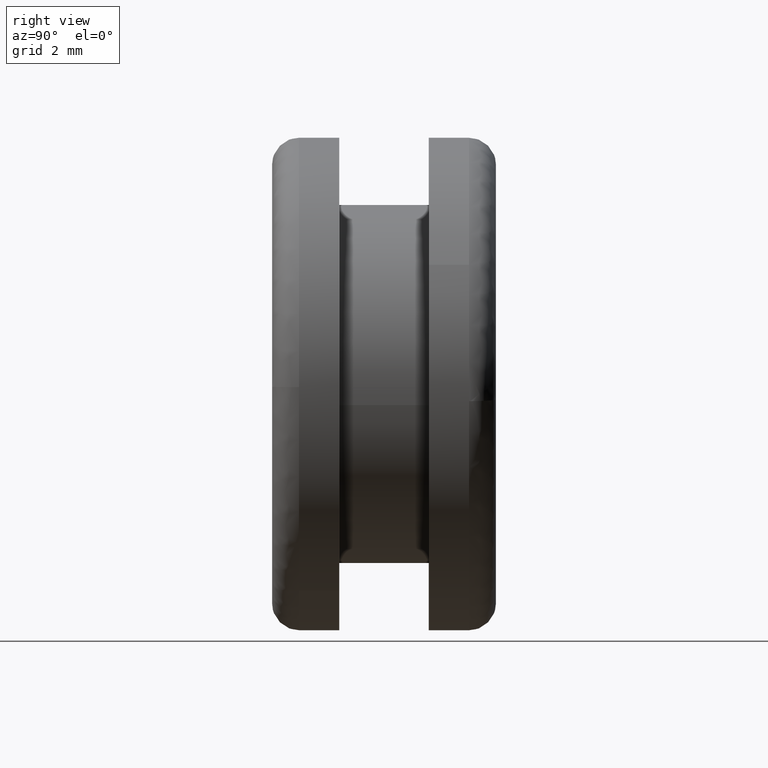
[diagram: clean part render]
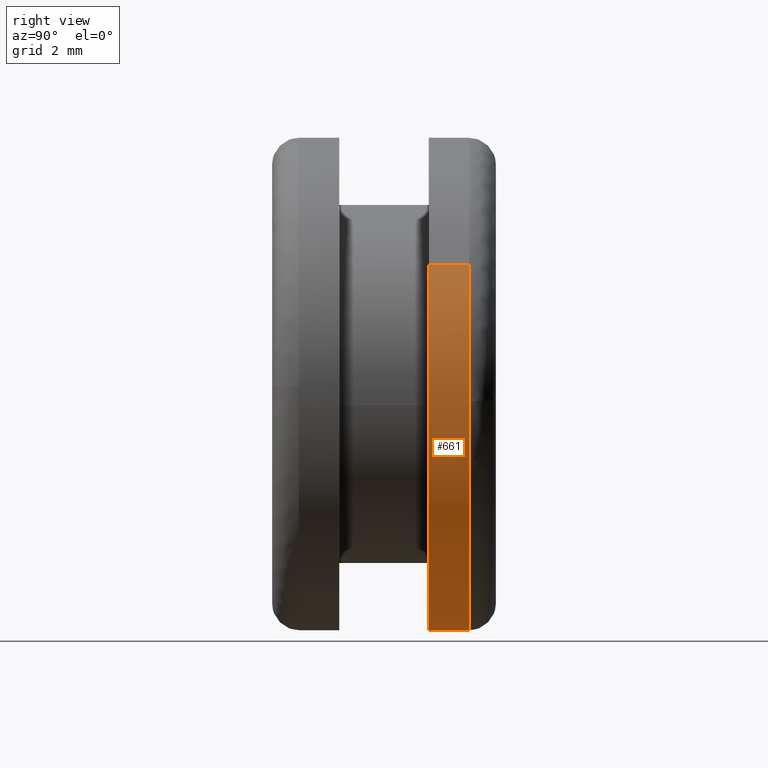
[diagram: same view with one face highlighted and labeled with its STEP entity id]
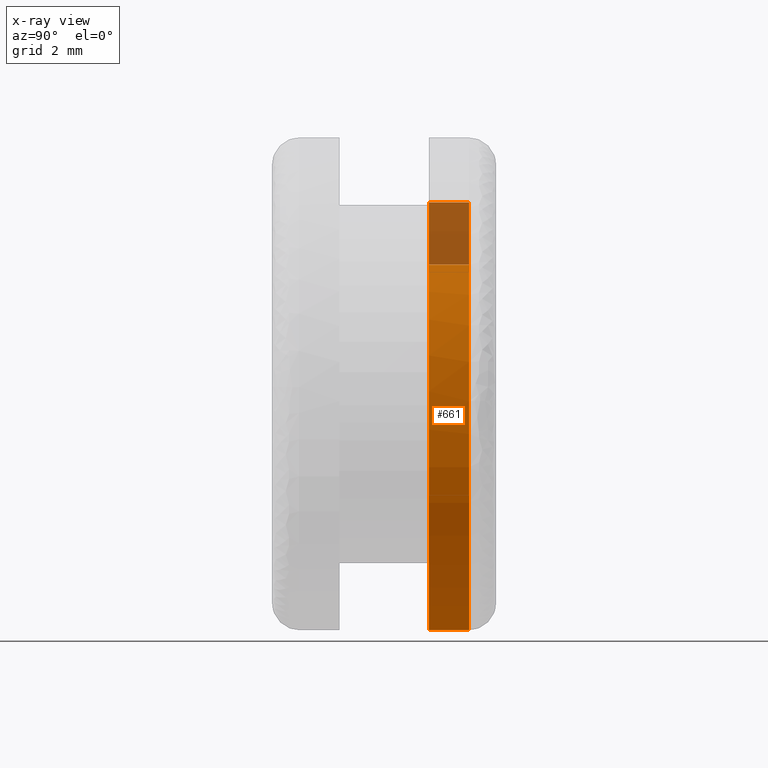
[diagram: x-ray of the same camera — body ghosted, the highlighted face saturated]
A machine part, right view. The second image highlights one B-rep face of the part: STEP entity #661.
The next image is the same camera in x-ray: the body ghosted, the highlighted face saturated — about 15% of this face is hidden behind the body in this view.
In plain terms, the highlighted face is a freeform B-spline surface patch.
Its self-contained STEP definition (entity closure, byte-faithful):
#464=CARTESIAN_POINT('',(4.812205843439302,4.400000000000018,2.663207637486718));
#465=VERTEX_POINT('',#464);
#481=CARTESIAN_POINT('',(-3.715745918085256,4.400000000007310,4.055025557530997));
#482=VERTEX_POINT('',#481);
#496=CARTESIAN_POINT('',(-3.715745924040497,3.500000000000000,4.055025552074405));
#497=VERTEX_POINT('',#496);
#498=CARTESIAN_POINT('',(-3.715745918085256,4.400000000007310,4.055025557530997));
#499=CARTESIAN_POINT('',(-3.715745924040497,3.500000000000000,4.055025552074405));
#500=QUASI_UNIFORM_CURVE('',1,(#498,#499),.UNSPECIFIED.,.F.,.U.);
#501=EDGE_CURVE('',#482,#497,#500,.T.);
#518=CARTESIAN_POINT('',(4.812205804631674,3.500000000000000,2.663207707609066));
#519=VERTEX_POINT('',#518);
#533=CARTESIAN_POINT('',(4.812205843439302,4.400000000000018,2.663207637486718));
#534=CARTESIAN_POINT('',(4.812205804631674,3.500000000000000,2.663207707609066));
#535=QUASI_UNIFORM_CURVE('',1,(#533,#534),.UNSPECIFIED.,.F.,.U.);
#536=EDGE_CURVE('',#465,#519,#535,.T.);
#541=CARTESIAN_POINT('',(-3.715746141886131,4.422500000028186,4.055025352455680));
#542=CARTESIAN_POINT('',(-7.770771494341811,4.422500000028186,0.339279210569550));
#543=CARTESIAN_POINT('',(-4.055025352455680,4.422500000028186,-3.715746141886131));
#544=CARTESIAN_POINT('',(-0.339279210569550,4.422500000028186,-7.770771494341811));
#545=CARTESIAN_POINT('',(3.715746141886131,4.422500000028186,-4.055025352455680));
#546=CARTESIAN_POINT('',(6.910254076114374,4.422500000028187,-1.127798146676340));
#547=CARTESIAN_POINT('',(4.812205350937217,4.422500000028186,2.663208527399086));
#548=CARTESIAN_POINT('',(-3.715746141886131,3.476937499999295,4.055025352455680));
#549=CARTESIAN_POINT('',(-7.770771494341811,3.476937499999295,0.339279210569550));
#550=CARTESIAN_POINT('',(-4.055025352455680,3.476937499999295,-3.715746141886131));
#551=CARTESIAN_POINT('',(-0.339279210569550,3.476937499999295,-7.770771494341811));
#552=CARTESIAN_POINT('',(3.715746141886131,3.476937499999295,-4.055025352455680));
#553=CARTESIAN_POINT('',(6.910254076114374,3.476937499999294,-1.127798146676340));
#554=CARTESIAN_POINT('',(4.812205350937217,3.476937499999294,2.663208527399086));
#562=(BOUNDED_SURFACE()B_SPLINE_SURFACE(2,1,((#541,#548),(#542,#549),(#543,#550),(#544,#551),(#545,#552),(#546,#553),(#547,#554)),.UNSPECIFIED.,.F.,.F.,.U.)B_SPLINE_SURFACE_WITH_KNOTS((3,2,2,3),(2,2),(0.0,9.112698372208087,18.225396744416170,25.880063377070961),(0.0,1.0),.UNSPECIFIED.)GEOMETRIC_REPRESENTATION_ITEM()RATIONAL_B_SPLINE_SURFACE(((1.0,1.0),(0.707106781186548,0.707106781186548),(1.0,1.0),(0.707106781186548,0.707106781186548),(1.0,1.0),(0.753969696196700,0.753969696196700),(0.921270302782944,0.921270302782944)))REPRESENTATION_ITEM('')SURFACE());
#563=CARTESIAN_POINT('',(5.486611206122208,4.400000000027498,-0.383532883667365));
#564=VERTEX_POINT('',#563);
#565=CARTESIAN_POINT('',(5.486611206122208,4.400000000027498,-0.383532883667365));
#566=CARTESIAN_POINT('',(5.499999999999999,4.400000000000001,-0.192000137313358));
#567=CARTESIAN_POINT('',(5.500000000000000,4.400000000000000,-1.928755E-016));
#568=CARTESIAN_POINT('',(5.500000000000000,4.400000000000000,1.420417923047572));
#569=CARTESIAN_POINT('',(4.812205843439302,4.400000000000018,2.663207637486718));
#577=(BOUNDED_CURVE()B_SPLINE_CURVE(2,(#565,#566,#567,#568,#569),.UNSPECIFIED.,.F.,.U.)B_SPLINE_CURVE_WITH_KNOTS((3,2,3),(0.237833686534982,0.250000000000000,0.332484260513294),.UNSPECIFIED.)CURVE()GEOMETRIC_REPRESENTATION_ITEM()RATIONAL_B_SPLINE_CURVE((0.972879876386744,0.985746277152550,1.0,0.903363677747256,0.870495160132448))REPRESENTATION_ITEM(''));
#578=EDGE_CURVE('',#564,#465,#577,.T.);
#579=ORIENTED_EDGE('',*,*,#578,.T.);
#580=ORIENTED_EDGE('',*,*,#536,.T.);
#581=CARTESIAN_POINT('',(0.0,3.500000000000000,-5.500000000000000));
#582=VERTEX_POINT('',#581);
#583=CARTESIAN_POINT('',(0.0,3.500000000000000,-5.500000000000000));
#584=CARTESIAN_POINT('',(5.500000000000001,3.499999999999999,-5.500000000000001));
#585=CARTESIAN_POINT('',(5.500000000000000,3.500000000000000,-1.928755E-016));
#586=CARTESIAN_POINT('',(5.500000000000001,3.500000000000000,1.420417466066309));
#587=CARTESIAN_POINT('',(4.812205804631675,3.500000000000000,2.663207707609067));
#595=(BOUNDED_CURVE()B_SPLINE_CURVE(2,(#583,#584,#585,#586,#587),.UNSPECIFIED.,.F.,.U.)B_SPLINE_CURVE_WITH_KNOTS((3,2,3),(0.0,0.250000000000000,0.332484236540648),.UNSPECIFIED.)CURVE()GEOMETRIC_REPRESENTATION_ITEM()RATIONAL_B_SPLINE_CURVE((1.0,0.707106781186548,1.0,0.903363705832958,0.870495179237803))REPRESENTATION_ITEM(''));
#596=EDGE_CURVE('',#582,#519,#595,.T.);
#597=ORIENTED_EDGE('',*,*,#596,.F.);
#598=CARTESIAN_POINT('',(-3.715745924040497,3.500000000000000,4.055025552074405));
#599=CARTESIAN_POINT('',(-5.499999999999999,3.500000000000000,2.420058272584527));
#600=CARTESIAN_POINT('',(-5.500000000000000,3.500000000000000,-1.928755E-016));
#601=CARTESIAN_POINT('',(-5.500000000000001,3.499999999999999,-5.500000000000001));
#602=CARTESIAN_POINT('',(0.0,3.500000000000000,-5.500000000000000));
#610=(BOUNDED_CURVE()B_SPLINE_CURVE(2,(#598,#599,#600,#601,#602),.UNSPECIFIED.,.F.,.U.)B_SPLINE_CURVE_WITH_KNOTS((3,2,3),(0.618415192864190,0.750000000000000,1.0),.UNSPECIFIED.)CURVE()GEOMETRIC_REPRESENTATION_ITEM()RATIONAL_B_SPLINE_CURVE((0.853959782840026,0.845838809164181,1.0,0.707106781186548,1.0))REPRESENTATION_ITEM(''));
#611=EDGE_CURVE('',#497,#582,#610,.T.);
#612=ORIENTED_EDGE('',*,*,#611,.F.);
#613=ORIENTED_EDGE('',*,*,#501,.F.);
#614=CARTESIAN_POINT('',(-5.499565743120951,4.400000000027498,0.069113219361356));
#615=VERTEX_POINT('',#614);
#616=CARTESIAN_POINT('',(-3.715745918085256,4.400000000007311,4.055025557530997));
#617=CARTESIAN_POINT('',(-5.469672098197592,4.400000000015454,2.447848677929653));
#618=CARTESIAN_POINT('',(-5.499565743120951,4.400000000027498,0.069113219361356));
#626=(BOUNDED_CURVE()B_SPLINE_CURVE(2,(#616,#617,#618),.UNSPECIFIED.,.F.,.U.)B_SPLINE_CURVE_WITH_KNOTS((3,3),(0.618415192420787,0.747784295921543),.UNSPECIFIED.)CURVE()GEOMETRIC_REPRESENTATION_ITEM()RATIONAL_B_SPLINE_CURVE((0.853959782894757,0.845975554490198,0.994854295643585))REPRESENTATION_ITEM(''));
#627=EDGE_CURVE('',#482,#615,#626,.T.);
#628=ORIENTED_EDGE('',*,*,#627,.T.);
#629=CARTESIAN_POINT('',(0.0,4.400000000000000,-5.500000000000000));
#630=VERTEX_POINT('',#629);
#631=CARTESIAN_POINT('',(-5.499565743120951,4.400000000027498,0.069113219361356));
#632=CARTESIAN_POINT('',(-5.500000000000000,4.400000000000000,0.034557973958313));
#633=CARTESIAN_POINT('',(-5.500000000000000,4.400000000000000,-1.928755E-016));
#634=CARTESIAN_POINT('',(-5.500000000000001,4.400000000000001,-5.500000000000001));
#635=CARTESIAN_POINT('',(0.0,4.400000000000000,-5.500000000000000));
#643=(BOUNDED_CURVE()B_SPLINE_CURVE(2,(#631,#632,#633,#634,#635),.UNSPECIFIED.,.F.,.U.)B_SPLINE_CURVE_WITH_KNOTS((3,2,3),(0.747784295921542,0.750000000000000,1.0),.UNSPECIFIED.)CURVE()GEOMETRIC_REPRESENTATION_ITEM()RATIONAL_B_SPLINE_CURVE((0.994854295643583,0.997404141202089,1.0,0.707106781186548,1.0))REPRESENTATION_ITEM(''));
#644=EDGE_CURVE('',#615,#630,#643,.T.);
#645=ORIENTED_EDGE('',*,*,#644,.T.);
#646=CARTESIAN_POINT('',(0.0,4.400000000000000,-5.500000000000000));
#647=CARTESIAN_POINT('',(5.128952659961843,4.400000000000001,-5.500000000000000));
#648=CARTESIAN_POINT('',(5.486611206122208,4.400000000027498,-0.383532883667365));
#656=(BOUNDED_CURVE()B_SPLINE_CURVE(2,(#646,#647,#648),.UNSPECIFIED.,.F.,.U.)B_SPLINE_CURVE_WITH_KNOTS((3,3),(0.0,0.237833686534982),.UNSPECIFIED.)CURVE()GEOMETRIC_REPRESENTATION_ITEM()RATIONAL_B_SPLINE_CURVE((1.0,0.721360504033998,0.972879876386744))REPRESENTATION_ITEM(''));
#657=EDGE_CURVE('',#630,#564,#656,.T.);
#658=ORIENTED_EDGE('',*,*,#657,.T.);
#659=EDGE_LOOP('',(#579,#580,#597,#612,#613,#628,#645,#658));
#660=FACE_OUTER_BOUND('',#659,.T.);
#661=ADVANCED_FACE('',(#660),#562,.T.);